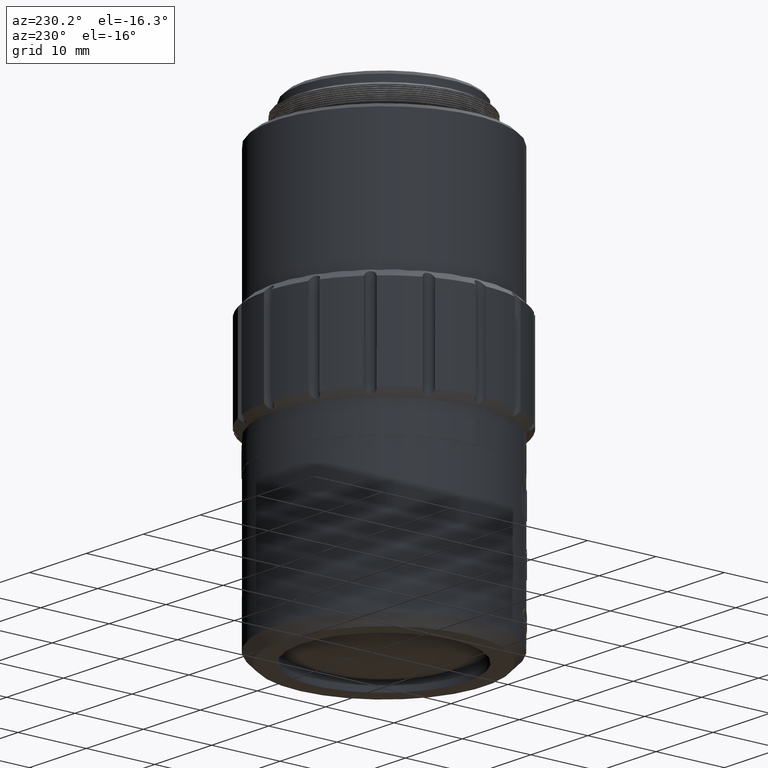
[diagram: clean part render]
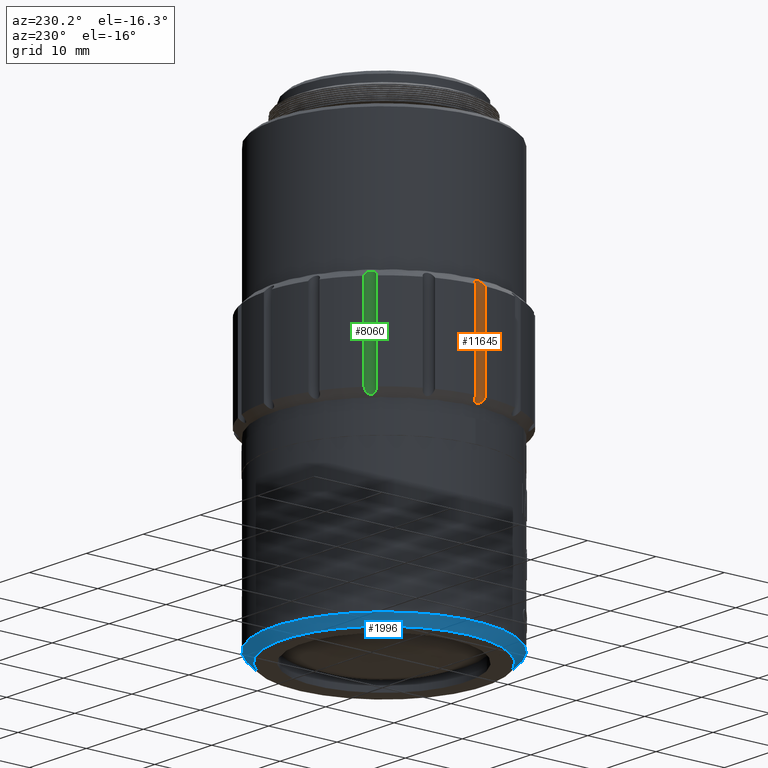
[diagram: same view with three faces highlighted in distinct colors, each labeled with its STEP entity id]
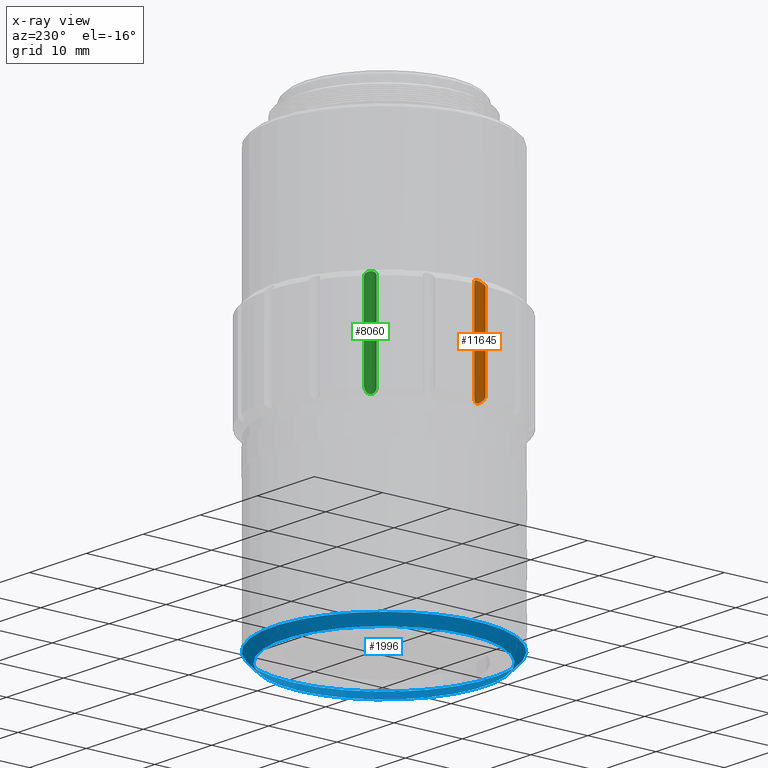
[diagram: x-ray of the same camera — body ghosted, the three highlighted faces saturated]
A machine part, auxiliary view with three faces highlighted in distinct colors.
The next image is the same camera in x-ray (body ghosted, the three faces saturated) — at least one of them is partly hidden behind the body in this view.
Their STEP definitions:

[orange] entity #11645 — the highlighted cylindrical surface (edge-blend (fillet) strip) has radius 0.7081 mm, axis along (-0, -0, 1).
#602 = CARTESIAN_POINT ( 'NONE',  ( -139.4916406340973936, 22.70704441361695203, -6.657200975131927656 ) ) ;
#742 = CARTESIAN_POINT ( 'NONE',  ( -139.6482864039182346, 22.72326074510129246, -6.499999999999999112 ) ) ;
#828 = CARTESIAN_POINT ( 'NONE',  ( -138.9829975999232943, 22.23717377754595503, 7.178776448947767008 ) ) ;
#1954 = VECTOR ( 'NONE', #9698, 1000.000000000000000 ) ;
#2105 = VERTEX_POINT ( 'NONE', #6198 ) ;
#2373 = B_SPLINE_CURVE_WITH_KNOTS ( 'NONE', 3,
 ( #8940, #13432, #602, #6508, #3236, #12020, #9022, #16434, #17727, #3598, #4914, #12211, #12120, #10619, #9210, #14927 ),
 .UNSPECIFIED., .F., .F.,
 ( 4, 2, 2, 2, 2, 2, 2, 4 ),
 ( 2.788950520995468460E-07, 0.0003320497425292776527, 0.0006638205900064557711, 0.0009955914374836340522, 0.001327362284960812008, 0.001659133132437989964, 0.001990903979915168570, 0.002654445674869526216 ),
 .UNSPECIFIED. ) ;
#3236 = CARTESIAN_POINT ( 'NONE',  ( -139.2671966853792753, 22.60896733823087246, -6.885319302732691327 ) ) ;
#3355 = CARTESIAN_POINT ( 'NONE',  ( -139.6630341068842540, 22.01530283243874919, -30.05000000000000782 ) ) ;
#3598 = CARTESIAN_POINT ( 'NONE',  ( -138.9547614356289671, 21.90490918553084398, -7.208279676267807190 ) ) ;
#3616 = CARTESIAN_POINT ( 'NONE',  ( -139.6482864039182346, 21.30734491977621303, -6.499999999999999112 ) ) ;
#3726 = DIRECTION ( 'NONE',  ( -0.000000000000000000, -0.000000000000000000, 1.000000000000000000 ) ) ;
#4333 = VERTEX_POINT ( 'NONE', #742 ) ;
#4407 = DIRECTION ( 'NONE',  ( -0.000000000000000000, -0.000000000000000000, 1.000000000000000000 ) ) ;
#4854 = CARTESIAN_POINT ( 'NONE',  ( -139.3327901905864223, 22.66600531762114912, 6.817917757091784381 ) ) ;
#4914 = CARTESIAN_POINT ( 'NONE',  ( -138.9829975999233227, 21.79343188733154690, -7.178776448947767896 ) ) ;
#5130 = CARTESIAN_POINT ( 'NONE',  ( -139.4916406340973367, 21.32356125126054991, 6.657200975131933873 ) ) ;
#5348 = EDGE_CURVE ( 'NONE', #10147, #6537, #12702, .T. ) ;
#6198 = CARTESIAN_POINT ( 'NONE',  ( -139.6482864039182346, 22.72326074510129246, 6.500000000000001776 ) ) ;
#6352 = DIRECTION ( 'NONE',  ( 1.000000000000000000, 0.000000000000000000, 0.000000000000000000 ) ) ;
#6508 = CARTESIAN_POINT ( 'NONE',  ( -139.3409633498073674, 22.65103277909911483, -6.809977491739664046 ) ) ;
#6537 = VERTEX_POINT ( 'NONE', #3616 ) ;
#7676 = CARTESIAN_POINT ( 'NONE',  ( -139.1329467996962137, 22.49299788632851715, 7.023254621753840965 ) ) ;
#7785 = ORIENTED_EDGE ( 'NONE', *, *, #11616, .T. ) ;
#8038 = CARTESIAN_POINT ( 'NONE',  ( -138.9830849167740894, 21.79279443286677420, 7.178683898143455977 ) ) ;
#8425 = CARTESIAN_POINT ( 'NONE',  ( -139.6482864039182346, 22.72326074510129246, -5.050000000000006928 ) ) ;
#8940 = CARTESIAN_POINT ( 'NONE',  ( -139.6482864039182346, 22.72326074510129246, -6.499999999999999112 ) ) ;
#9022 = CARTESIAN_POINT ( 'NONE',  ( -139.0736097355201935, 22.42078994623354404, -7.084665610043474615 ) ) ;
#9157 = CARTESIAN_POINT ( 'NONE',  ( -139.2671966853792753, 21.42163832664662593, 6.885319302732695768 ) ) ;
#9210 = CARTESIAN_POINT ( 'NONE',  ( -139.4896638107191507, 21.31064923892620300, -6.658622593199116757 ) ) ;
#9248 = CARTESIAN_POINT ( 'NONE',  ( -139.5689816098249310, 21.30899694389536947, 6.579304794093292941 ) ) ;
#9337 = CARTESIAN_POINT ( 'NONE',  ( -139.0736097355201935, 21.60981571864395434, 7.084665610043481720 ) ) ;
#9698 = DIRECTION ( 'NONE',  ( 0.000000000000000000, 0.000000000000000000, -1.000000000000000000 ) ) ;
#9790 = EDGE_LOOP ( 'NONE', ( #17434, #18108, #7785, #12750 ) ) ;
#10147 = VERTEX_POINT ( 'NONE', #18167 ) ;
#10267 = AXIS2_PLACEMENT_3D ( 'NONE', #3355, #3726, #6352 ) ;
#10556 = CARTESIAN_POINT ( 'NONE',  ( -139.6482864039182346, 22.72326074510129246, 6.500000000000001776 ) ) ;
#10619 = CARTESIAN_POINT ( 'NONE',  ( -139.3327901905864508, 21.36460034725634216, -6.817917757091792375 ) ) ;
#10761 = B_SPLINE_CURVE_WITH_KNOTS ( 'NONE', 3,
 ( #16189, #9248, #5130, #16288, #9157, #16385, #9337, #8038, #13657, #13746, #828, #14779, #7676, #4854, #13561, #10556 ),
 .UNSPECIFIED., .F., .F.,
 ( 4, 2, 2, 2, 2, 2, 2, 4 ),
 ( 2.788950521104785473E-07, 0.0003320497425292897415, 0.0006638205900064689984, 0.0009955914374836481468, 0.001327362284960827404, 0.001659133132438006661, 0.001990903979915185917, 0.002654445674869542696 ),
 .UNSPECIFIED. ) ;
#11616 = EDGE_CURVE ( 'NONE', #10147, #2105, #10761, .T. ) ;
#11645 = ADVANCED_FACE ( 'NONE', ( #16474 ), #13471, .F. ) ;
#12020 = CARTESIAN_POINT ( 'NONE',  ( -139.1342386345653495, 22.49436458018758600, -7.021922413567946997 ) ) ;
#12120 = CARTESIAN_POINT ( 'NONE',  ( -139.1329467996962421, 21.53760777854898123, -7.023254621753843630 ) ) ;
#12211 = CARTESIAN_POINT ( 'NONE',  ( -139.0724408071137077, 21.61172394132998775, -7.085877810620012873 ) ) ;
#12389 = EDGE_CURVE ( 'NONE', #4333, #6537, #2373, .T. ) ;
#12408 = VECTOR ( 'NONE', #4407, 1000.000000000000000 ) ;
#12702 = LINE ( 'NONE', #13739, #1954 ) ;
#12750 = ORIENTED_EDGE ( 'NONE', *, *, #15173, .F. ) ;
#13432 = CARTESIAN_POINT ( 'NONE',  ( -139.5689816098249594, 22.72160872098213247, -6.579304794093306263 ) ) ;
#13471 = CYLINDRICAL_SURFACE ( 'NONE', #10267, 0.7081115031153384365 ) ;
#13561 = CARTESIAN_POINT ( 'NONE',  ( -139.4896638107191222, 22.71995642595129894, 6.658622593199106099 ) ) ;
#13657 = CARTESIAN_POINT ( 'NONE',  ( -138.9550852672229553, 21.90285117817333571, 7.207941769656414976 ) ) ;
#13739 = CARTESIAN_POINT ( 'NONE',  ( -139.6482864039182346, 21.30734491977621303, -5.050000000000006928 ) ) ;
#13746 = CARTESIAN_POINT ( 'NONE',  ( -138.9547614356289387, 22.12569647934665440, 7.208279676267806302 ) ) ;
#14779 = CARTESIAN_POINT ( 'NONE',  ( -139.0724408071137077, 22.41888172354751063, 7.085877810620010209 ) ) ;
#14927 = CARTESIAN_POINT ( 'NONE',  ( -139.6482864039182346, 21.30734491977621303, -6.499999999999999112 ) ) ;
#15173 = EDGE_CURVE ( 'NONE', #4333, #2105, #17236, .T. ) ;
#16189 = CARTESIAN_POINT ( 'NONE',  ( -139.6482864039182346, 21.30734491977621303, 6.500000000000000000 ) ) ;
#16288 = CARTESIAN_POINT ( 'NONE',  ( -139.3409633498073674, 21.37957288577838000, 6.809977491739672040 ) ) ;
#16385 = CARTESIAN_POINT ( 'NONE',  ( -139.1342386345654063, 21.53624108468992659, 7.021922413567954102 ) ) ;
#16434 = CARTESIAN_POINT ( 'NONE',  ( -138.9830849167741178, 22.23781123201073484, -7.178683898143453312 ) ) ;
#16474 = FACE_OUTER_BOUND ( 'NONE', #9790, .T. ) ;
#17236 = LINE ( 'NONE', #8425, #12408 ) ;
#17434 = ORIENTED_EDGE ( 'NONE', *, *, #12389, .T. ) ;
#17727 = CARTESIAN_POINT ( 'NONE',  ( -138.9550852672230121, 22.12775448670415912, -7.207941769656414088 ) ) ;
#18108 = ORIENTED_EDGE ( 'NONE', *, *, #5348, .F. ) ;
#18167 = CARTESIAN_POINT ( 'NONE',  ( -139.6482864039182346, 21.30734491977621303, 6.500000000000000000 ) ) ;

[blue] entity #1996 — the highlighted conical surface has half-angle 45 deg.
#1309 = AXIS2_PLACEMENT_3D ( 'NONE', #12664, #9753, #15286 ) ;
#1996 = ADVANCED_FACE ( 'NONE', ( #4047, #16699 ), #13876, .T. ) ;
#2283 = VERTEX_POINT ( 'NONE', #3506 ) ;
#3301 = ORIENTED_EDGE ( 'NONE', *, *, #5265, .F. ) ;
#3506 = CARTESIAN_POINT ( 'NONE',  ( -106.6630341068842824, 22.01530283243863906, -32.60774392209305717 ) ) ;
#3744 = AXIS2_PLACEMENT_3D ( 'NONE', #9160, #9251, #13295 ) ;
#4047 = FACE_BOUND ( 'NONE', #11724, .T. ) ;
#5265 = EDGE_CURVE ( 'NONE', #10423, #10423, #13599, .T. ) ;
#5911 = EDGE_CURVE ( 'NONE', #2283, #2283, #10314, .T. ) ;
#9160 = CARTESIAN_POINT ( 'NONE',  ( -122.6630341068842824, 22.01530283243863906, -32.60774392209305717 ) ) ;
#9251 = DIRECTION ( 'NONE',  ( 0.000000000000000000, 0.000000000000000000, 1.000000000000000000 ) ) ;
#9604 = DIRECTION ( 'NONE',  ( -0.000000000000000000, -0.000000000000000000, -1.000000000000000000 ) ) ;
#9753 = DIRECTION ( 'NONE',  ( 0.000000000000000000, 0.000000000000000000, 1.000000000000000000 ) ) ;
#10314 = CIRCLE ( 'NONE', #3744, 16.00000000000000000 ) ;
#10423 = VERTEX_POINT ( 'NONE', #16426 ) ;
#11724 = EDGE_LOOP ( 'NONE', ( #3301 ) ) ;
#12664 = CARTESIAN_POINT ( 'NONE',  ( -122.6630341068842824, 22.01530283243863906, -33.90774392209306143 ) ) ;
#13295 = DIRECTION ( 'NONE',  ( 1.000000000000000000, 0.000000000000000000, 0.000000000000000000 ) ) ;
#13586 = ORIENTED_EDGE ( 'NONE', *, *, #5911, .F. ) ;
#13599 = CIRCLE ( 'NONE', #15094, 14.70000000000000462 ) ;
#13876 = CONICAL_SURFACE ( 'NONE', #1309, 14.70000000000000462, 0.7853981633974463916 ) ;
#14110 = DIRECTION ( 'NONE',  ( 1.000000000000000000, 0.000000000000000000, 0.000000000000000000 ) ) ;
#15094 = AXIS2_PLACEMENT_3D ( 'NONE', #18130, #9604, #14110 ) ;
#15286 = DIRECTION ( 'NONE',  ( 1.000000000000000000, 0.000000000000000000, 0.000000000000000000 ) ) ;
#16426 = CARTESIAN_POINT ( 'NONE',  ( -107.9630341068842796, 22.01530283243863906, -33.90774392209306143 ) ) ;
#16622 = EDGE_LOOP ( 'NONE', ( #13586 ) ) ;
#16699 = FACE_OUTER_BOUND ( 'NONE', #16622, .T. ) ;
#18130 = CARTESIAN_POINT ( 'NONE',  ( -122.6630341068842824, 22.01530283243863906, -33.90774392209306143 ) ) ;

[green] entity #8060 — the highlighted cylindrical surface (edge-blend (fillet) strip) has radius 0.7081 mm, axis along (-0, -0, 1).
#196 = CARTESIAN_POINT ( 'NONE',  ( -134.1728193454429174, 34.52629175267420436, 6.500000000000000000 ) ) ;
#302 = ORIENTED_EDGE ( 'NONE', *, *, #14004, .F. ) ;
#736 = CARTESIAN_POINT ( 'NONE',  ( -134.0735207373168976, 34.40405978863111613, -6.657200975131932097 ) ) ;
#1472 = EDGE_LOOP ( 'NONE', ( #12150, #302, #3807, #14249 ) ) ;
#1555 = VERTEX_POINT ( 'NONE', #13577 ) ;
#1637 = VECTOR ( 'NONE', #4786, 1000.000000000000000 ) ;
#1942 = CARTESIAN_POINT ( 'NONE',  ( -135.1740230271196310, 33.52508807099749788, -6.499999999999999112 ) ) ;
#2050 = CARTESIAN_POINT ( 'NONE',  ( -134.8237342598572752, 33.33643458982110985, 6.885319302732668234 ) ) ;
#3037 = VERTEX_POINT ( 'NONE', #16938 ) ;
#3458 = CARTESIAN_POINT ( 'NONE',  ( -134.6486823331583480, 33.32345543783234376, 7.021922413567927457 ) ) ;
#3807 = ORIENTED_EDGE ( 'NONE', *, *, #15414, .T. ) ;
#3906 = CARTESIAN_POINT ( 'NONE',  ( -134.1728193454429174, 34.52629175267421147, -5.050000000000006928 ) ) ;
#4497 = CARTESIAN_POINT ( 'NONE',  ( -135.0517910630765357, 33.42578946287150643, 6.657200975131926768 ) ) ;
#4688 = CARTESIAN_POINT ( 'NONE',  ( -134.5516102305111588, 33.33313221477220623, -7.085877810619989781 ) ) ;
#4786 = DIRECTION ( 'NONE',  ( 0.000000000000000000, 0.000000000000000000, -1.000000000000000000 ) ) ;
#4855 = CARTESIAN_POINT ( 'NONE',  ( -133.9808634892175974, 33.90387895606570368, 7.085877810620010209 ) ) ;
#4926 = AXIS2_PLACEMENT_3D ( 'NONE', #5054, #16484, #18053 ) ;
#5054 = CARTESIAN_POINT ( 'NONE',  ( -134.6838493870554601, 34.03611811261004050, -30.05000000000000782 ) ) ;
#5470 = VERTEX_POINT ( 'NONE', #12893 ) ;
#6020 = EDGE_CURVE ( 'NONE', #3037, #15941, #16296, .T. ) ;
#6084 = CARTESIAN_POINT ( 'NONE',  ( -134.5537861049154174, 33.33260945477384496, 7.084665610043466621 ) ) ;
#6341 = B_SPLINE_CURVE_WITH_KNOTS ( 'NONE', 3,
 ( #8889, #7491, #4497, #17674, #2050, #3458, #6084, #13292, #17412, #10557, #11882, #4855, #16104, #13199, #14604, #196 ),
 .UNSPECIFIED., .F., .F.,
 ( 4, 2, 2, 2, 2, 2, 2, 4 ),
 ( 2.788950520417382238E-07, 0.0003320497425292167205, 0.0006638205900063916948, 0.0009955914374835666148, 0.001327362284960741535, 0.001659133132437916672, 0.001990903979915091809, 0.002654445674869461164 ),
 .UNSPECIFIED. ) ;
#7491 = CARTESIAN_POINT ( 'NONE',  ( -135.1167779119783461, 33.47017927077088473, 6.579304794093282283 ) ) ;
#7768 = CARTESIAN_POINT ( 'NONE',  ( -134.1037386345111315, 33.61503801463912566, -7.207941769656398989 ) ) ;
#7858 = CARTESIAN_POINT ( 'NONE',  ( -133.9803407292193071, 33.90605483046994806, -7.084665610043463957 ) ) ;
#8060 = ADVANCED_FACE ( 'NONE', ( #16575 ), #13573, .F. ) ;
#8889 = CARTESIAN_POINT ( 'NONE',  ( -135.1740230271196310, 33.52508807099749788, 6.500000000000000000 ) ) ;
#9061 = CARTESIAN_POINT ( 'NONE',  ( -133.9841658642665720, 34.17600298541183435, -6.885319302732683333 ) ) ;
#9338 = LINE ( 'NONE', #3906, #13009 ) ;
#10384 = CARTESIAN_POINT ( 'NONE',  ( -135.0595234093410397, 33.41526146617518123, -6.658622593199095441 ) ) ;
#10466 = CARTESIAN_POINT ( 'NONE',  ( -134.9104478142030814, 33.34248426014283240, -6.817917757091786157 ) ) ;
#10557 = CARTESIAN_POINT ( 'NONE',  ( -134.1049648819532649, 33.61335380016479490, 7.208279676267797420 ) ) ;
#10560 = CARTESIAN_POINT ( 'NONE',  ( -134.2610850746102074, 33.45723360750778141, -7.208279676267788538 ) ) ;
#11793 = CARTESIAN_POINT ( 'NONE',  ( -134.1728193454429174, 34.52629175267420436, -6.499999999999999112 ) ) ;
#11807 = CARTESIAN_POINT ( 'NONE',  ( -135.1740230271196310, 33.52508807099750499, -5.050000000000006928 ) ) ;
#11882 = CARTESIAN_POINT ( 'NONE',  ( -134.0461045116954040, 33.71214613691707740, 7.178776448947761679 ) ) ;
#11885 = CARTESIAN_POINT ( 'NONE',  ( -134.3598774113625609, 33.39837323724994889, -7.178776448947749245 ) ) ;
#12150 = ORIENTED_EDGE ( 'NONE', *, *, #6020, .T. ) ;
#12893 = CARTESIAN_POINT ( 'NONE',  ( -135.1740230271196310, 33.52508807099749788, 6.500000000000000000 ) ) ;
#13009 = VECTOR ( 'NONE', #17864, 1000.000000000000000 ) ;
#13199 = CARTESIAN_POINT ( 'NONE',  ( -133.9902155345881738, 34.26271653975764053, 6.817917757091785269 ) ) ;
#13201 = CARTESIAN_POINT ( 'NONE',  ( -134.1179105452163469, 34.46904663753289810, -6.579304794093299158 ) ) ;
#13292 = CARTESIAN_POINT ( 'NONE',  ( -134.3603899020745871, 33.39798423121252569, 7.178683898143440878 ) ) ;
#13573 = CYLINDRICAL_SURFACE ( 'NONE', #4926, 0.7081115031153384365 ) ;
#13577 = CARTESIAN_POINT ( 'NONE',  ( -134.1728193454429174, 34.52629175267420436, 6.500000000000000000 ) ) ;
#14004 = EDGE_CURVE ( 'NONE', #5470, #15941, #15934, .T. ) ;
#14249 = ORIENTED_EDGE ( 'NONE', *, *, #15541, .F. ) ;
#14604 = CARTESIAN_POINT ( 'NONE',  ( -134.0629927406206434, 34.41179213489554201, 6.658622593199109652 ) ) ;
#14607 = CARTESIAN_POINT ( 'NONE',  ( -134.0457155056579666, 33.71265862762913912, -7.178683898143438213 ) ) ;
#15414 = EDGE_CURVE ( 'NONE', #5470, #1555, #6341, .T. ) ;
#15541 = EDGE_CURVE ( 'NONE', #3037, #1555, #9338, .T. ) ;
#15934 = LINE ( 'NONE', #11807, #1637 ) ;
#15941 = VERTEX_POINT ( 'NONE', #1942 ) ;
#16104 = CARTESIAN_POINT ( 'NONE',  ( -133.9712396455771568, 33.99907119502115904, 7.023254621753840077 ) ) ;
#16192 = CARTESIAN_POINT ( 'NONE',  ( -135.1740230271196310, 33.52508807099749788, -6.499999999999999112 ) ) ;
#16296 = B_SPLINE_CURVE_WITH_KNOTS ( 'NONE', 3,
 ( #11793, #13201, #736, #17510, #9061, #16477, #7858, #14607, #7768, #10560, #11885, #4688, #17594, #10466, #10384, #16192 ),
 .UNSPECIFIED., .F., .F.,
 ( 4, 2, 2, 2, 2, 2, 2, 4 ),
 ( 2.788950520332541829E-07, 0.0003320497425292192142, 0.0006638205900064052473, 0.0009955914374835911178, 0.001327362284960777097, 0.001659133132437962859, 0.001990903979915149054, 0.002654445674869454225 ),
 .UNSPECIFIED. ) ;
#16477 = CARTESIAN_POINT ( 'NONE',  ( -133.9711867122778415, 34.00095105871290002, -7.021922413567941668 ) ) ;
#16484 = DIRECTION ( 'NONE',  ( -0.000000000000000000, -0.000000000000000000, 1.000000000000000000 ) ) ;
#16575 = FACE_OUTER_BOUND ( 'NONE', #1472, .T. ) ;
#16938 = CARTESIAN_POINT ( 'NONE',  ( -134.1728193454429174, 34.52629175267420436, -6.499999999999999112 ) ) ;
#17412 = CARTESIAN_POINT ( 'NONE',  ( -134.2627692890845310, 33.45600736006567644, 7.207941769656399877 ) ) ;
#17510 = CARTESIAN_POINT ( 'NONE',  ( -134.0065820144176314, 34.25790865254596440, -6.809977491739667599 ) ) ;
#17594 = CARTESIAN_POINT ( 'NONE',  ( -134.6468024694666497, 33.32350837113173725, -7.023254621753838300 ) ) ;
#17674 = CARTESIAN_POINT ( 'NONE',  ( -134.9056399269914550, 33.35885073997219763, 6.809977491739664934 ) ) ;
#17864 = DIRECTION ( 'NONE',  ( -0.000000000000000000, -0.000000000000000000, 1.000000000000000000 ) ) ;
#18053 = DIRECTION ( 'NONE',  ( 1.000000000000000000, 0.000000000000000000, 0.000000000000000000 ) ) ;